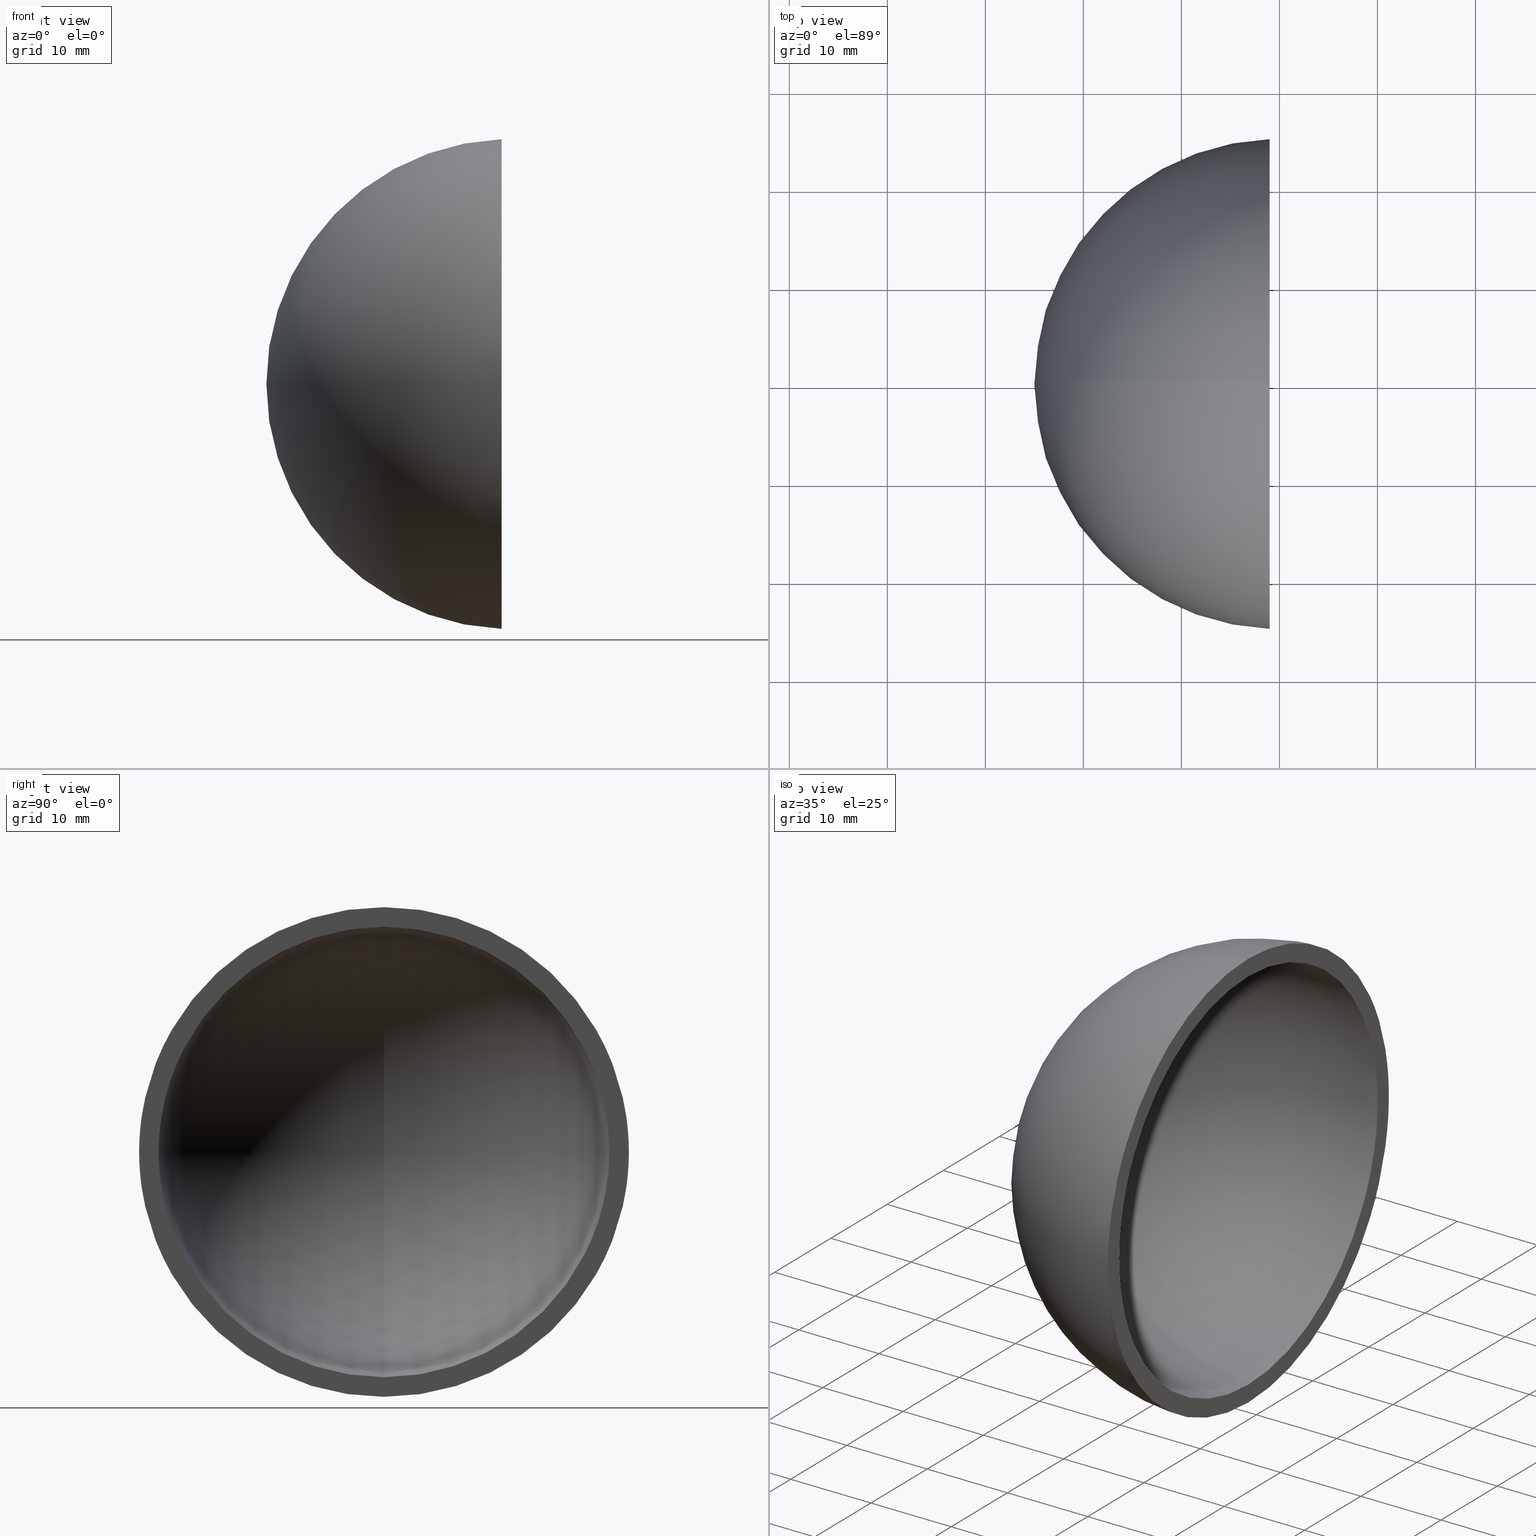
[diagram: canonical four-view strip — front | top / right | iso, engineering-drawing reading convention]
A machine part, canonical four-view strip (front | top / right | iso — engineering-drawing reading convention). The complete STEP part file that produces these views, byte-faithful:
ISO-10303-21;
HEADER;
FILE_DESCRIPTION (( 'STEP AP214' ),
    '1' );
FILE_NAME ('197536.STEP',
    '2019-07-23T02:07:43',
    ( 'user' ),
    ( '΢���й�' ),
    'SwSTEP 2.0',
    'SolidWorks 2016',
    '' );
FILE_SCHEMA (( 'AUTOMOTIVE_DESIGN' ));
ENDSEC;

DATA;
#1 = COLOUR_RGB ( '',1.000000000000000000, 1.000000000000000000, 1.000000000000000000 ) ;
#2 = EDGE_CURVE ( 'NONE', #117, #77, #138, .T. ) ;
#3 = EDGE_CURVE ( 'NONE', #117, #14, #16, .T. ) ;
#4 = ORIENTED_EDGE ( 'NONE', *, *, #12, .T. ) ;
#5 = FILL_AREA_STYLE ('',( #139 ) ) ;
#6 = STYLED_ITEM ( 'NONE', ( #34 ), #102 ) ;
#7 =( GEOMETRIC_REPRESENTATION_CONTEXT ( 3 ) GLOBAL_UNCERTAINTY_ASSIGNED_CONTEXT ( ( #72 ) ) GLOBAL_UNIT_ASSIGNED_CONTEXT ( ( #85, #170, #112 ) ) REPRESENTATION_CONTEXT ( 'NONE', 'WORKASPACE' ) );
#8 = DIRECTION ( 'NONE',  ( 0.0000000000000000000, 0.0000000000000000000, 1.000000000000000000 ) ) ;
#9 = ORIENTED_EDGE ( 'NONE', *, *, #150, .T. ) ;
#10 = CARTESIAN_POINT ( 'NONE',  ( -0.9999999999999956700, 0.0000000000000000000, 0.0000000000000000000 ) ) ;
#11 = FILL_AREA_STYLE ('',( #147 ) ) ;
#12 = EDGE_CURVE ( 'NONE', #14, #77, #105, .T. ) ;
#13 = AXIS2_PLACEMENT_3D ( 'NONE', #167, #47, #51 ) ;
#14 = VERTEX_POINT ( 'NONE', #49 ) ;
#15 = PRESENTATION_LAYER_ASSIGNMENT (  '', '', ( #6 ) ) ;
#16 = CIRCLE ( 'NONE', #141, 23.00000000000000000 ) ;
#17 = ORIENTED_EDGE ( 'NONE', *, *, #127, .T. ) ;
#18 = UNCERTAINTY_MEASURE_WITH_UNIT (LENGTH_MEASURE( 1.000000000000000100E-005 ), #148, 'distance_accuracy_value', 'NONE');
#19 = DIRECTION ( 'NONE',  ( 0.0000000000000000000, -1.000000000000000000, 1.224646799147353200E-016 ) ) ;
#20 = PRODUCT_DEFINITION_SHAPE ( 'NONE', 'NONE',  #74 ) ;
#21 = CARTESIAN_POINT ( 'NONE',  ( 0.0000000000000000000, 0.0000000000000000000, 0.0000000000000000000 ) ) ;
#22 = EDGE_CURVE ( 'NONE', #77, #14, #169, .T. ) ;
#23 = DIRECTION ( 'NONE',  ( 0.0000000000000000000, -1.224646799147353200E-016, -1.000000000000000000 ) ) ;
#24 = MECHANICAL_DESIGN_GEOMETRIC_PRESENTATION_REPRESENTATION (  '', ( #6 ), #28 ) ;
#25 = APPLICATION_PROTOCOL_DEFINITION ( 'draft international standard', 'automotive_design', 1998, #33 ) ;
#26 = ORIENTED_EDGE ( 'NONE', *, *, #12, .F. ) ;
#27 = EDGE_LOOP ( 'NONE', ( #63, #151, #145 ) ) ;
#28 =( GEOMETRIC_REPRESENTATION_CONTEXT ( 3 ) GLOBAL_UNCERTAINTY_ASSIGNED_CONTEXT ( ( #142 ) ) GLOBAL_UNIT_ASSIGNED_CONTEXT ( ( #86, #158, #136 ) ) REPRESENTATION_CONTEXT ( 'NONE', 'WORKASPACE' ) );
#29 = SPHERICAL_SURFACE ( 'NONE', #137, 23.00000000000000000 ) ;
#30 =( NAMED_UNIT ( * ) SI_UNIT ( $, .STERADIAN. ) SOLID_ANGLE_UNIT ( ) );
#31 = DIRECTION ( 'NONE',  ( 0.0000000000000000000, 0.0000000000000000000, 1.000000000000000000 ) ) ;
#32 = CARTESIAN_POINT ( 'NONE',  ( 0.0000000000000000000, 0.0000000000000000000, 0.0000000000000000000 ) ) ;
#33 = APPLICATION_CONTEXT ( 'automotive_design' ) ;
#34 = PRESENTATION_STYLE_ASSIGNMENT (( #172 ) ) ;
#35 = FACE_BOUND ( 'NONE', #149, .T. ) ;
#36 = PRODUCT_CONTEXT ( 'NONE', #133, 'mechanical' ) ;
#37 = EDGE_CURVE ( 'NONE', #80, #121, #75, .T. ) ;
#38 = ORIENTED_EDGE ( 'NONE', *, *, #3, .T. ) ;
#39 = ADVANCED_FACE ( 'NONE', ( #35, #111 ), #106, .F. ) ;
#40 = VERTEX_POINT ( 'NONE', #95 ) ;
#41 = DIRECTION ( 'NONE',  ( 0.0000000000000000000, -1.000000000000000000, 0.0000000000000000000 ) ) ;
#42 = CARTESIAN_POINT ( 'NONE',  ( 0.0000000000000000000, 0.0000000000000000000, 0.0000000000000000000 ) ) ;
#43 = CARTESIAN_POINT ( 'NONE',  ( -0.9999999999999958900, 0.0000000000000000000, 22.97825058615211400 ) ) ;
#44 = CARTESIAN_POINT ( 'NONE',  ( -0.9999999999999956700, 0.0000000000000000000, 22.97825058615211400 ) ) ;
#45 = MANIFOLD_SOLID_BREP ( '��ת1', #50 ) ;
#46 = SURFACE_STYLE_FILL_AREA ( #11 ) ;
#47 = DIRECTION ( 'NONE',  ( 0.0000000000000000000, 1.000000000000000000, 0.0000000000000000000 ) ) ;
#48 = CARTESIAN_POINT ( 'NONE',  ( -0.9999999999999956700, -3.059166723768090100E-015, -24.97999199359359700 ) ) ;
#49 = CARTESIAN_POINT ( 'NONE',  ( -0.9999999999999958900, -2.814024103033697900E-015, -22.97825058615211400 ) ) ;
#50 = CLOSED_SHELL ( 'NONE', ( #56, #116, #162, #39, #101 ) ) ;
#51 = DIRECTION ( 'NONE',  ( 0.0000000000000000000, 0.0000000000000000000, 1.000000000000000000 ) ) ;
#52 = PRODUCT ( '197536', '197536', '', ( #36 ) ) ;
#53 = EDGE_LOOP ( 'NONE', ( #89, #38, #4 ) ) ;
#54 = AXIS2_PLACEMENT_3D ( 'NONE', #143, #64, #132 ) ;
#55 = CIRCLE ( 'NONE', #146, 25.00000000000000000 ) ;
#56 = ADVANCED_FACE ( 'NONE', ( #140 ), #29, .F. ) ;
#57 = CIRCLE ( 'NONE', #128, 24.97999199359359700 ) ;
#58 = EDGE_CURVE ( 'NONE', #121, #40, #57, .T. ) ;
#59 = DIRECTION ( 'NONE',  ( 0.0000000000000000000, -1.000000000000000000, 0.0000000000000000000 ) ) ;
#60 = AXIS2_PLACEMENT_3D ( 'NONE', #120, #125, #168 ) ;
#61 = CARTESIAN_POINT ( 'NONE',  ( -0.9999999999999956700, 0.0000000000000000000, 0.0000000000000000000 ) ) ;
#62 = CARTESIAN_POINT ( 'NONE',  ( 0.0000000000000000000, 0.0000000000000000000, 0.0000000000000000000 ) ) ;
#63 = ORIENTED_EDGE ( 'NONE', *, *, #3, .F. ) ;
#64 = DIRECTION ( 'NONE',  ( 1.000000000000000000, -0.0000000000000000000, -0.0000000000000000000 ) ) ;
#65 = DIRECTION ( 'NONE',  ( 1.000000000000000000, -0.0000000000000000000, -0.0000000000000000000 ) ) ;
#66 = AXIS2_PLACEMENT_3D ( 'NONE', #21, #83, #23 ) ;
#67 = DIRECTION ( 'NONE',  ( 1.000000000000000000, -0.0000000000000000000, -0.0000000000000000000 ) ) ;
#68 = CARTESIAN_POINT ( 'NONE',  ( -0.9999999999999958900, 0.0000000000000000000, 0.0000000000000000000 ) ) ;
#69 = SURFACE_STYLE_USAGE ( .BOTH. , #131 ) ;
#70 = ORIENTED_EDGE ( 'NONE', *, *, #37, .F. ) ;
#71 = AXIS2_PLACEMENT_3D ( 'NONE', #68, #155, #82 ) ;
#72 = UNCERTAINTY_MEASURE_WITH_UNIT (LENGTH_MEASURE( 1.000000000000000100E-005 ), #85, 'distance_accuracy_value', 'NONE');
#73 = CIRCLE ( 'NONE', #171, 24.97999199359359700 ) ;
#74 = PRODUCT_DEFINITION ( 'δ֪', '', #84, #100 ) ;
#75 = CIRCLE ( 'NONE', #66, 25.00000000000000000 ) ;
#76 = SURFACE_STYLE_FILL_AREA ( #5 ) ;
#77 = VERTEX_POINT ( 'NONE', #43 ) ;
#78 = CARTESIAN_POINT ( 'NONE',  ( 0.0000000000000000000, 0.0000000000000000000, 0.0000000000000000000 ) ) ;
#79 = DIRECTION ( 'NONE',  ( 0.0000000000000000000, 1.000000000000000000, 0.0000000000000000000 ) ) ;
#80 = VERTEX_POINT ( 'NONE', #154 ) ;
#81 = CARTESIAN_POINT ( 'NONE',  ( 0.0000000000000000000, 0.0000000000000000000, 0.0000000000000000000 ) ) ;
#82 = DIRECTION ( 'NONE',  ( 0.0000000000000000000, 0.0000000000000000000, -1.000000000000000000 ) ) ;
#83 = DIRECTION ( 'NONE',  ( 0.0000000000000000000, -1.000000000000000000, 1.224646799147353200E-016 ) ) ;
#84 = PRODUCT_DEFINITION_FORMATION_WITH_SPECIFIED_SOURCE ( '�κ�', '', #52, .NOT_KNOWN. ) ;
#85 =( LENGTH_UNIT ( ) NAMED_UNIT ( * ) SI_UNIT ( .MILLI., .METRE. ) );
#86 =( LENGTH_UNIT ( ) NAMED_UNIT ( * ) SI_UNIT ( .MILLI., .METRE. ) );
#87 = ORIENTED_EDGE ( 'NONE', *, *, #58, .F. ) ;
#88 = STYLED_ITEM ( 'NONE', ( #115 ), #45 ) ;
#89 = ORIENTED_EDGE ( 'NONE', *, *, #2, .F. ) ;
#90 = COLOUR_RGB ( '',1.000000000000000000, 1.000000000000000000, 1.000000000000000000 ) ;
#91 = PRODUCT_RELATED_PRODUCT_CATEGORY ( 'part', '', ( #52 ) ) ;
#92 = DIRECTION ( 'NONE',  ( 0.0000000000000000000, 0.0000000000000000000, 1.000000000000000000 ) ) ;
#93 = AXIS2_PLACEMENT_3D ( 'NONE', #44, #109, #123 ) ;
#94 = SPHERICAL_SURFACE ( 'NONE', #152, 23.00000000000000000 ) ;
#95 = CARTESIAN_POINT ( 'NONE',  ( -0.9999999999999956700, 0.0000000000000000000, 24.97999199359359700 ) ) ;
#96 = APPLICATION_PROTOCOL_DEFINITION ( 'draft international standard', 'automotive_design', 1998, #133 ) ;
#97 = FACE_OUTER_BOUND ( 'NONE', #27, .T. ) ;
#98 = DIRECTION ( 'NONE',  ( 0.0000000000000000000, 0.0000000000000000000, 1.000000000000000000 ) ) ;
#99 = EDGE_LOOP ( 'NONE', ( #9, #124 ) ) ;
#100 = PRODUCT_DEFINITION_CONTEXT ( 'detailed design', #33, 'design' ) ;
#101 = ADVANCED_FACE ( 'NONE', ( #97 ), #94, .F. ) ;
#102 = ADVANCED_BREP_SHAPE_REPRESENTATION ( '197536', ( #45, #60 ), #7 ) ;
#103 = PRESENTATION_LAYER_ASSIGNMENT (  '', '', ( #88 ) ) ;
#104 = SPHERICAL_SURFACE ( 'NONE', #161, 25.00000000000000000 ) ;
#105 = CIRCLE ( 'NONE', #71, 22.97825058615211400 ) ;
#106 = PLANE ( 'NONE',  #93 ) ;
#107 = CARTESIAN_POINT ( 'NONE',  ( -23.00000000000000000, 0.0000000000000000000, 1.408343819019456200E-015 ) ) ;
#108 = FACE_OUTER_BOUND ( 'NONE', #130, .T. ) ;
#109 = DIRECTION ( 'NONE',  ( -1.000000000000000000, 0.0000000000000000000, 0.0000000000000000000 ) ) ;
#110 = DIRECTION ( 'NONE',  ( 0.0000000000000000000, -1.000000000000000000, 0.0000000000000000000 ) ) ;
#111 = FACE_OUTER_BOUND ( 'NONE', #99, .T. ) ;
#112 =( NAMED_UNIT ( * ) SI_UNIT ( $, .STERADIAN. ) SOLID_ANGLE_UNIT ( ) );
#113 = ORIENTED_EDGE ( 'NONE', *, *, #150, .F. ) ;
#114 = MECHANICAL_DESIGN_GEOMETRIC_PRESENTATION_REPRESENTATION (  '', ( #88 ), #122 ) ;
#115 = PRESENTATION_STYLE_ASSIGNMENT (( #69 ) ) ;
#116 = ADVANCED_FACE ( 'NONE', ( #108 ), #104, .T. ) ;
#117 = VERTEX_POINT ( 'NONE', #107 ) ;
#118 =( NAMED_UNIT ( * ) PLANE_ANGLE_UNIT ( ) SI_UNIT ( $, .RADIAN. ) );
#119 = CARTESIAN_POINT ( 'NONE',  ( 0.0000000000000000000, 0.0000000000000000000, 0.0000000000000000000 ) ) ;
#120 = CARTESIAN_POINT ( 'NONE',  ( 0.0000000000000000000, 0.0000000000000000000, 0.0000000000000000000 ) ) ;
#121 = VERTEX_POINT ( 'NONE', #48 ) ;
#122 =( GEOMETRIC_REPRESENTATION_CONTEXT ( 3 ) GLOBAL_UNCERTAINTY_ASSIGNED_CONTEXT ( ( #18 ) ) GLOBAL_UNIT_ASSIGNED_CONTEXT ( ( #148, #118, #30 ) ) REPRESENTATION_CONTEXT ( 'NONE', 'WORKASPACE' ) );
#123 = DIRECTION ( 'NONE',  ( 0.0000000000000000000, 0.0000000000000000000, 1.000000000000000000 ) ) ;
#124 = ORIENTED_EDGE ( 'NONE', *, *, #58, .T. ) ;
#125 = DIRECTION ( 'NONE',  ( 0.0000000000000000000, 0.0000000000000000000, 1.000000000000000000 ) ) ;
#126 = ORIENTED_EDGE ( 'NONE', *, *, #37, .T. ) ;
#127 = EDGE_CURVE ( 'NONE', #80, #40, #55, .T. ) ;
#128 = AXIS2_PLACEMENT_3D ( 'NONE', #10, #67, #165 ) ;
#129 = DIRECTION ( 'NONE',  ( 0.0000000000000000000, -1.000000000000000000, 0.0000000000000000000 ) ) ;
#130 = EDGE_LOOP ( 'NONE', ( #164, #126, #113 ) ) ;
#131 = SURFACE_SIDE_STYLE ('',( #46 ) ) ;
#132 = DIRECTION ( 'NONE',  ( 0.0000000000000000000, 0.0000000000000000000, -1.000000000000000000 ) ) ;
#133 = APPLICATION_CONTEXT ( 'automotive_design' ) ;
#134 = SHAPE_DEFINITION_REPRESENTATION ( #20, #102 ) ;
#135 = EDGE_LOOP ( 'NONE', ( #70, #17, #87 ) ) ;
#136 =( NAMED_UNIT ( * ) SI_UNIT ( $, .STERADIAN. ) SOLID_ANGLE_UNIT ( ) );
#137 = AXIS2_PLACEMENT_3D ( 'NONE', #62, #110, #157 ) ;
#138 = CIRCLE ( 'NONE', #13, 23.00000000000000000 ) ;
#139 = FILL_AREA_STYLE_COLOUR ( '', #90 ) ;
#140 = FACE_OUTER_BOUND ( 'NONE', #53, .T. ) ;
#141 = AXIS2_PLACEMENT_3D ( 'NONE', #119, #19, #153 ) ;
#142 = UNCERTAINTY_MEASURE_WITH_UNIT (LENGTH_MEASURE( 1.000000000000000100E-005 ), #86, 'distance_accuracy_value', 'NONE');
#143 = CARTESIAN_POINT ( 'NONE',  ( -0.9999999999999958900, 0.0000000000000000000, 0.0000000000000000000 ) ) ;
#144 = DIRECTION ( 'NONE',  ( 0.0000000000000000000, 0.0000000000000000000, -1.000000000000000000 ) ) ;
#145 = ORIENTED_EDGE ( 'NONE', *, *, #22, .T. ) ;
#146 = AXIS2_PLACEMENT_3D ( 'NONE', #32, #79, #98 ) ;
#147 = FILL_AREA_STYLE_COLOUR ( '', #1 ) ;
#148 =( LENGTH_UNIT ( ) NAMED_UNIT ( * ) SI_UNIT ( .MILLI., .METRE. ) );
#149 = EDGE_LOOP ( 'NONE', ( #159, #26 ) ) ;
#150 = EDGE_CURVE ( 'NONE', #40, #121, #73, .T. ) ;
#151 = ORIENTED_EDGE ( 'NONE', *, *, #2, .T. ) ;
#152 = AXIS2_PLACEMENT_3D ( 'NONE', #42, #129, #8 ) ;
#153 = DIRECTION ( 'NONE',  ( 0.0000000000000000000, -1.224646799147353200E-016, -1.000000000000000000 ) ) ;
#154 = CARTESIAN_POINT ( 'NONE',  ( -25.00000000000000000, 0.0000000000000000000, 1.530808498934191500E-015 ) ) ;
#155 = DIRECTION ( 'NONE',  ( 1.000000000000000000, -0.0000000000000000000, -0.0000000000000000000 ) ) ;
#156 = FACE_OUTER_BOUND ( 'NONE', #135, .T. ) ;
#157 = DIRECTION ( 'NONE',  ( 0.0000000000000000000, 0.0000000000000000000, 1.000000000000000000 ) ) ;
#158 =( NAMED_UNIT ( * ) PLANE_ANGLE_UNIT ( ) SI_UNIT ( $, .RADIAN. ) );
#159 = ORIENTED_EDGE ( 'NONE', *, *, #22, .F. ) ;
#160 = AXIS2_PLACEMENT_3D ( 'NONE', #81, #59, #31 ) ;
#161 = AXIS2_PLACEMENT_3D ( 'NONE', #78, #41, #92 ) ;
#162 = ADVANCED_FACE ( 'NONE', ( #156 ), #163, .T. ) ;
#163 = SPHERICAL_SURFACE ( 'NONE', #160, 25.00000000000000000 ) ;
#164 = ORIENTED_EDGE ( 'NONE', *, *, #127, .F. ) ;
#165 = DIRECTION ( 'NONE',  ( 0.0000000000000000000, 0.0000000000000000000, -1.000000000000000000 ) ) ;
#166 = SURFACE_SIDE_STYLE ('',( #76 ) ) ;
#167 = CARTESIAN_POINT ( 'NONE',  ( 0.0000000000000000000, 0.0000000000000000000, 0.0000000000000000000 ) ) ;
#168 = DIRECTION ( 'NONE',  ( 1.000000000000000000, 0.0000000000000000000, 0.0000000000000000000 ) ) ;
#169 = CIRCLE ( 'NONE', #54, 22.97825058615211400 ) ;
#170 =( NAMED_UNIT ( * ) PLANE_ANGLE_UNIT ( ) SI_UNIT ( $, .RADIAN. ) );
#171 = AXIS2_PLACEMENT_3D ( 'NONE', #61, #65, #144 ) ;
#172 = SURFACE_STYLE_USAGE ( .BOTH. , #166 ) ;
ENDSEC;
END-ISO-10303-21;
